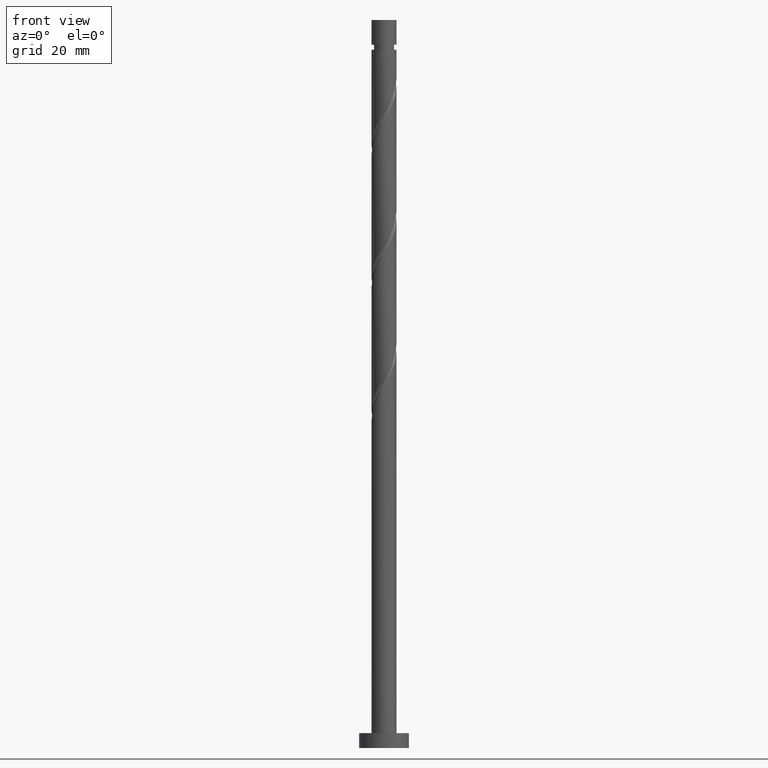
[diagram: clean part render]
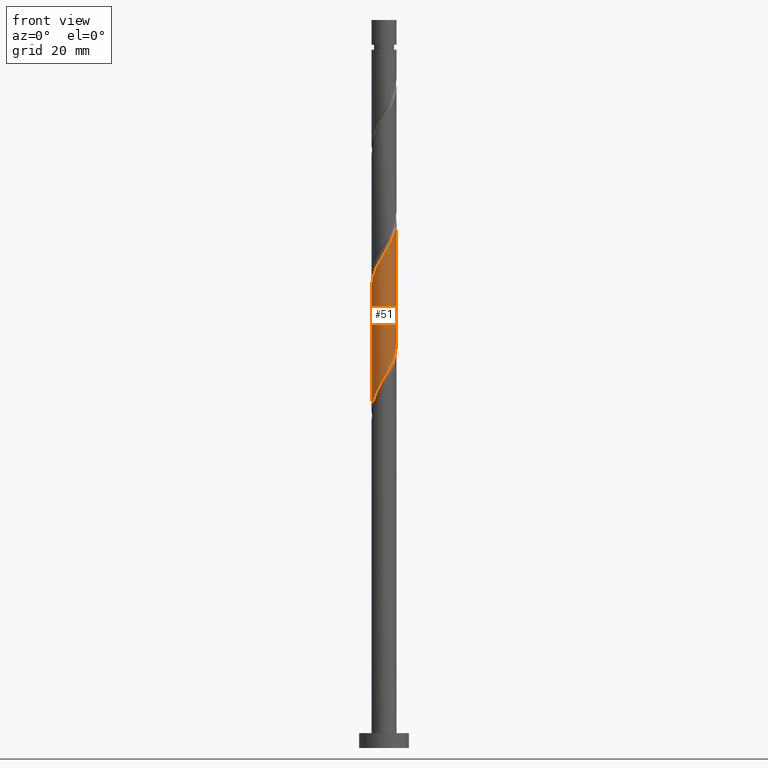
[diagram: same view with one face highlighted and labeled with its STEP entity id]
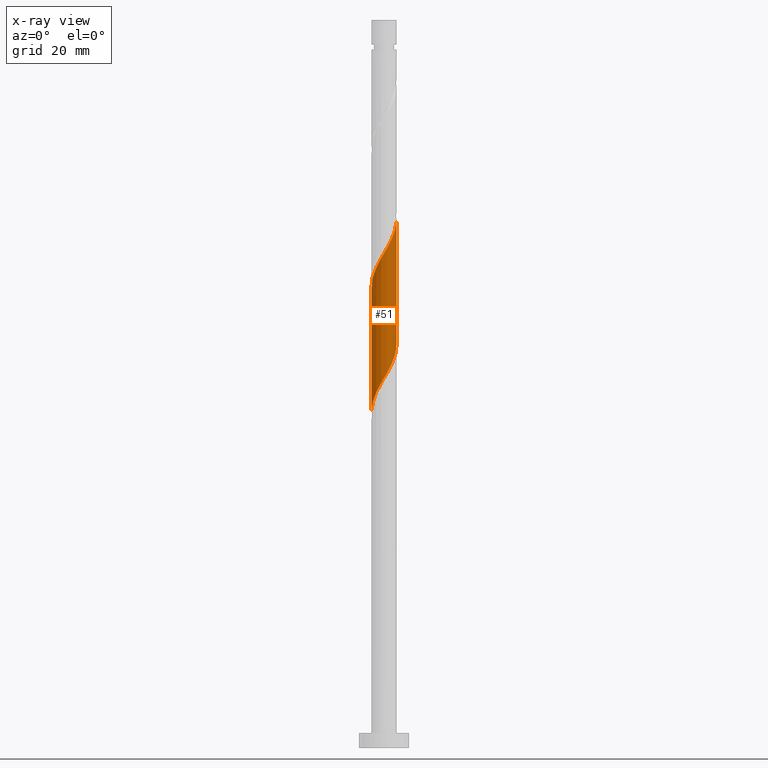
[diagram: x-ray of the same camera — body ghosted, the highlighted face saturated]
A machine part, front view. The second image highlights one B-rep face of the part: STEP entity #51.
The next image is the same camera in x-ray: the body ghosted, the highlighted face saturated — about 0% of this face is hidden behind the body in this view.
In plain terms, the highlighted cylindrical surface (edge-blend (fillet) strip) has radius 2.5 mm, axis along (-0, -0, -1).
Its self-contained STEP definition (entity closure, byte-faithful):
#1 = CARTESIAN_POINT ( 'NONE',  ( -2.475193905018191920, -0.5026095591624446524, 93.35490618896120907 ) ) ;
#7 = EDGE_LOOP ( 'NONE', ( #680, #1055, #411, #1044 ) ) ;
#47 = VERTEX_POINT ( 'NONE', #54 ) ;
#49 = CARTESIAN_POINT ( 'NONE',  ( 2.233329684002603344, -1.179593048026942981, 78.80945164350667653 ) ) ;
#51 = ADVANCED_FACE ( 'NONE', ( #1064 ), #313, .T. ) ;
#54 = CARTESIAN_POINT ( 'NONE',  ( -2.500000000000003109, -1.847167356881797397E-15, 92.50545170966032060 ) ) ;
#61 = CARTESIAN_POINT ( 'NONE',  ( -2.177375558832923996, -1.228428132125367167, 69.71854255259761146 ) ) ;
#98 = CARTESIAN_POINT ( 'NONE',  ( -2.495863270706177417, -0.1437585960555960440, 92.74884558290057157 ) ) ;
#111 = CARTESIAN_POINT ( 'NONE',  ( -2.021932029057392555, -1.470302985738610513, 95.17308800714300787 ) ) ;
#115 = CARTESIAN_POINT ( 'NONE',  ( -0.9060516544719222631, -2.330036566114083385, 97.59733043138544417 ) ) ;
#126 = CARTESIAN_POINT ( 'NONE',  ( -1.810534374112179767, -1.761012923450277379, 95.77914861320363116 ) ) ;
#152 = VECTOR ( 'NONE', #1575, 1000.000000000000000 ) ;
#166 = CARTESIAN_POINT ( 'NONE',  ( -0.8497505388409951621, -2.378471201873189944, 72.74884558290061420 ) ) ;
#186 = DIRECTION ( 'NONE',  ( -0.000000000000000000, -0.000000000000000000, -1.000000000000000000 ) ) ;
#187 = CARTESIAN_POINT ( 'NONE',  ( 2.500000000000003109, 1.720034380902078682E-15, 105.8387850429936776 ) ) ;
#230 = CARTESIAN_POINT ( 'NONE',  ( 2.500000000000003109, -0.2863223184628118645, 105.3528250900223213 ) ) ;
#236 = CARTESIAN_POINT ( 'NONE',  ( -0.2129030368922535943, -2.490917962696097110, 98.80945164350667653 ) ) ;
#253 = CARTESIAN_POINT ( 'NONE',  ( 1.485422444420511967, -2.042724014156701351, 101.8397546738096935 ) ) ;
#288 = VERTEX_POINT ( 'NONE', #318 ) ;
#296 = CARTESIAN_POINT ( 'NONE',  ( 1.525797355502942709, -1.980389464206530281, 76.99126982532484931 ) ) ;
#313 = CYLINDRICAL_SURFACE ( 'NONE', #1603, 2.500000000000000000 ) ;
#318 = CARTESIAN_POINT ( 'NONE',  ( 2.500000000000000888, -2.991364140699285949E-15, 80.87102733492878315 ) ) ;
#349 = CARTESIAN_POINT ( 'NONE',  ( 2.353996859965342914, -0.9153687888900188252, 104.2639970980521298 ) ) ;
#357 = CARTESIAN_POINT ( 'NONE',  ( 2.000754257700508632, -1.541487475360719062, 103.0518758859309116 ) ) ;
#373 =( BOUNDED_CURVE ( )  B_SPLINE_CURVE ( 2, ( #1296, #675, #663, #412, #1185, #49, #1066, #1579, #296, #422, #936, #528, #1038, #1587, #801, #166, #1414, #1550, #571, #449, #61, #963, #580, #1461, #1212 ),
 .UNSPECIFIED., .F., .T. ) 
 B_SPLINE_CURVE_WITH_KNOTS ( ( 3, 2, 2, 2, 2, 2, 2, 2, 2, 2, 2, 2, 3 ),
 ( 0.8045252162417512176, 0.8068181818181817677, 0.8181818181818182323, 0.8295454545454545858, 0.8409090909090909394, 0.8522727272727272929, 0.8636363636363636465, 0.8750000000000000000, 0.8863636363636363535, 0.8977272727272727071, 0.9090909090909090606, 0.9204545454545454142, 0.9295252162417512176 ),
 .UNSPECIFIED. ) 
 CURVE ( )  GEOMETRIC_REPRESENTATION_ITEM ( )  RATIONAL_B_SPLINE_CURVE ( ( 0.9061101570135593475, 0.9072237824201414558, 0.9090909090909189416, 0.8998376744372214020, 0.9090909090909189416, 0.8998376744372214020, 0.9090909090909189416, 0.8998376744372214020, 0.9090909090909189416, 0.8998376744372214020, 0.9090909090909189416, 0.8998376744372214020, 0.9090909090909189416, 0.8998376744372214020, 0.9090909090909189416, 0.8998376744372214020, 0.9090909090909189416, 0.8998376744372214020, 0.9090909090909189416, 0.8998376744372214020, 0.9090909090909189416, 0.8998376744372214020, 0.9090909090909189416, 0.9017048011079989989, 0.9061101570135593475 ) ) 
 REPRESENTATION_ITEM ( '' )  );
#411 = ORIENTED_EDGE ( 'NONE', *, *, #920, .T. ) ;
#412 = CARTESIAN_POINT ( 'NONE',  ( 2.475193905018188367, -0.5026095591624448744, 80.02157285562790889 ) ) ;
#422 = CARTESIAN_POINT ( 'NONE',  ( 1.241060336893708982, -2.199766004962786070, 76.38520921926424023 ) ) ;
#428 = CARTESIAN_POINT ( 'NONE',  ( 0.000000000000000000, 0.000000000000000000, 146.0000000000000000 ) ) ;
#449 = CARTESIAN_POINT ( 'NONE',  ( -2.000754257700506855, -1.541487475360715953, 70.32460315865819211 ) ) ;
#484 = CARTESIAN_POINT ( 'NONE',  ( -1.241060336893712091, -2.199766004962788735, 96.99126982532484931 ) ) ;
#490 = CARTESIAN_POINT ( 'NONE',  ( 2.177375558832926217, -1.228428132125369387, 103.6579364919915349 ) ) ;
#528 = CARTESIAN_POINT ( 'NONE',  ( 0.5710429720501322137, -2.460307127265377591, 75.17308800714303629 ) ) ;
#571 = CARTESIAN_POINT ( 'NONE',  ( -1.743088351060509078, -1.792105744758706987, 70.93066376471881540 ) ) ;
#576 = VERTEX_POINT ( 'NONE', #187 ) ;
#580 = CARTESIAN_POINT ( 'NONE',  ( -2.435264748179752026, -0.5652305779706344735, 68.50642134047636489 ) ) ;
#608 = CARTESIAN_POINT ( 'NONE',  ( 0.1452368982656256635, -2.521528798126814408, 99.41551224956727140 ) ) ;
#618 = CARTESIAN_POINT ( 'NONE',  ( 1.743088351060509744, -1.792105744758709873, 102.4458152798703026 ) ) ;
#626 = CARTESIAN_POINT ( 'NONE',  ( 1.167586491630753232, -2.210597608014947202, 101.2336940677490844 ) ) ;
#663 = CARTESIAN_POINT ( 'NONE',  ( 2.495863270706176085, -0.1437585960555968490, 80.62763346168851797 ) ) ;
#675 = CARTESIAN_POINT ( 'NONE',  ( 2.500000000000001332, -0.07193881630955459294, 80.74892933021055796 ) ) ;
#680 = ORIENTED_EDGE ( 'NONE', *, *, #988, .F. ) ;
#736 = EDGE_CURVE ( 'NONE', #47, #576, #1356, .T. ) ;
#801 = CARTESIAN_POINT ( 'NONE',  ( -0.4974937185533109818, -2.450000000000000622, 73.35490618896123749 ) ) ;
#872 = CARTESIAN_POINT ( 'NONE',  ( 2.500000000000003109, 1.720034380902078682E-15, 105.8387850429936776 ) ) ;
#920 = EDGE_CURVE ( 'NONE', #47, #929, #1058, .T. ) ;
#929 = VERTEX_POINT ( 'NONE', #1047 ) ;
#936 = CARTESIAN_POINT ( 'NONE',  ( 0.9060516544719204868, -2.330036566114082053, 75.77914861320363116 ) ) ;
#963 = CARTESIAN_POINT ( 'NONE',  ( -2.353996859965340249, -0.9153687888900176040, 69.11248194653698818 ) ) ;
#983 = CARTESIAN_POINT ( 'NONE',  ( -2.233329684002606452, -1.179593048026943869, 94.56702740108241301 ) ) ;
#988 = EDGE_CURVE ( 'NONE', #576, #288, #1053, .T. ) ;
#992 = CARTESIAN_POINT ( 'NONE',  ( -1.525797355502945374, -1.980389464206532946, 96.38520921926424023 ) ) ;
#1017 = CARTESIAN_POINT ( 'NONE',  ( -2.500000000000003109, -1.847167356881797397E-15, 92.50545170966032060 ) ) ;
#1038 = CARTESIAN_POINT ( 'NONE',  ( 0.2129030368922523175, -2.490917962696094445, 74.56702740108245564 ) ) ;
#1044 = ORIENTED_EDGE ( 'NONE', *, *, #1101, .F. ) ;
#1047 = CARTESIAN_POINT ( 'NONE',  ( -2.500000000000000888, 2.512745878187399992E-15, 67.53769400159545455 ) ) ;
#1053 = LINE ( 'NONE', #1558, #1132 ) ;
#1055 = ORIENTED_EDGE ( 'NONE', *, *, #736, .F. ) ;
#1058 = LINE ( 'NONE', #1164, #152 ) ;
#1064 = FACE_OUTER_BOUND ( 'NONE', #7, .T. ) ;
#1066 = CARTESIAN_POINT ( 'NONE',  ( 2.021932029057390334, -1.470302985738609403, 78.20339103744603904 ) ) ;
#1101 = EDGE_CURVE ( 'NONE', #288, #929, #373, .T. ) ;
#1113 = CARTESIAN_POINT ( 'NONE',  ( 0.4974937185533105932, -2.450000000000003286, 100.0215728556278805 ) ) ;
#1120 = CARTESIAN_POINT ( 'NONE',  ( 0.8497505388409957172, -2.378471201873193941, 100.6276334616884895 ) ) ;
#1132 = VECTOR ( 'NONE', #1435, 1000.000000000000000 ) ;
#1145 = CARTESIAN_POINT ( 'NONE',  ( -0.5710429720501331019, -2.460307127265380256, 98.20339103744609588 ) ) ;
#1164 = CARTESIAN_POINT ( 'NONE',  ( -2.500000000000000000, 0.000000000000000000, 146.0000000000000000 ) ) ;
#1176 = DIRECTION ( 'NONE',  ( -1.000000000000000000, 0.000000000000000000, 0.000000000000000000 ) ) ;
#1185 = CARTESIAN_POINT ( 'NONE',  ( 2.354261794510395855, -0.8411013035946937055, 79.41551224956729982 ) ) ;
#1212 = CARTESIAN_POINT ( 'NONE',  ( -2.500000000000000888, 2.512745878187399992E-15, 67.53769400159545455 ) ) ;
#1238 = CARTESIAN_POINT ( 'NONE',  ( -2.500000000000003553, -0.07193881630955537010, 92.62754971437853158 ) ) ;
#1254 = CARTESIAN_POINT ( 'NONE',  ( -2.354261794510398964, -0.8411013035946938166, 93.96096679502180393 ) ) ;
#1296 = CARTESIAN_POINT ( 'NONE',  ( 2.500000000000000888, -2.991364140699285949E-15, 80.87102733492878315 ) ) ;
#1356 =( BOUNDED_CURVE ( )  B_SPLINE_CURVE ( 2, ( #1017, #1238, #98, #1, #1254, #983, #111, #126, #992, #484, #115, #1145, #236, #608, #1113, #1120, #626, #253, #618, #357, #490, #349, #1503, #230, #872 ),
 .UNSPECIFIED., .F., .T. ) 
 B_SPLINE_CURVE_WITH_KNOTS ( ( 3, 2, 2, 2, 2, 2, 2, 2, 2, 2, 2, 2, 3 ),
 ( 0.3045252162417512731, 0.3068181818181817677, 0.3181818181818182323, 0.3295454545454545858, 0.3409090909090909394, 0.3522727272727272929, 0.3636363636363636465, 0.3750000000000000000, 0.3863636363636363535, 0.3977272727272727071, 0.4090909090909090606, 0.4204545454545454142, 0.4295252162417511621 ),
 .UNSPECIFIED. ) 
 CURVE ( )  GEOMETRIC_REPRESENTATION_ITEM ( )  RATIONAL_B_SPLINE_CURVE ( ( 0.9061101570135650096, 0.9072237824201472289, 0.9090909090909247148, 0.8998376744372269531, 0.9090909090909247148, 0.8998376744372269531, 0.9090909090909247148, 0.8998376744372269531, 0.9090909090909247148, 0.8998376744372269531, 0.9090909090909247148, 0.8998376744372269531, 0.9090909090909247148, 0.8998376744372269531, 0.9090909090909247148, 0.8998376744372269531, 0.9090909090909247148, 0.8998376744372269531, 0.9090909090909247148, 0.8998376744372269531, 0.9090909090909247148, 0.8998376744372269531, 0.9090909090909247148, 0.9017048011080045500, 0.9061101570135648986 ) ) 
 REPRESENTATION_ITEM ( '' )  );
#1414 = CARTESIAN_POINT ( 'NONE',  ( -1.167586491630752787, -2.210597608014944537, 72.14278497684001934 ) ) ;
#1435 = DIRECTION ( 'NONE',  ( -0.000000000000000000, -0.000000000000000000, -1.000000000000000000 ) ) ;
#1461 = CARTESIAN_POINT ( 'NONE',  ( -2.500000000000000888, -0.2863223184628090889, 68.02365395456675401 ) ) ;
#1503 = CARTESIAN_POINT ( 'NONE',  ( 2.435264748179753358, -0.5652305779706359168, 104.8700577041126962 ) ) ;
#1550 = CARTESIAN_POINT ( 'NONE',  ( -1.485422444420510191, -2.042724014156698686, 71.53672437077941026 ) ) ;
#1558 = CARTESIAN_POINT ( 'NONE',  ( 2.500000000000000000, 3.061616997868383141E-16, 146.0000000000000000 ) ) ;
#1575 = DIRECTION ( 'NONE',  ( -0.000000000000000000, -0.000000000000000000, -1.000000000000000000 ) ) ;
#1579 = CARTESIAN_POINT ( 'NONE',  ( 1.810534374112177769, -1.761012923450275158, 77.59733043138545838 ) ) ;
#1587 = CARTESIAN_POINT ( 'NONE',  ( -0.1452368982656264962, -2.521528798126811299, 73.96096679502183235 ) ) ;
#1603 = AXIS2_PLACEMENT_3D ( 'NONE', #428, #186, #1176 ) ;